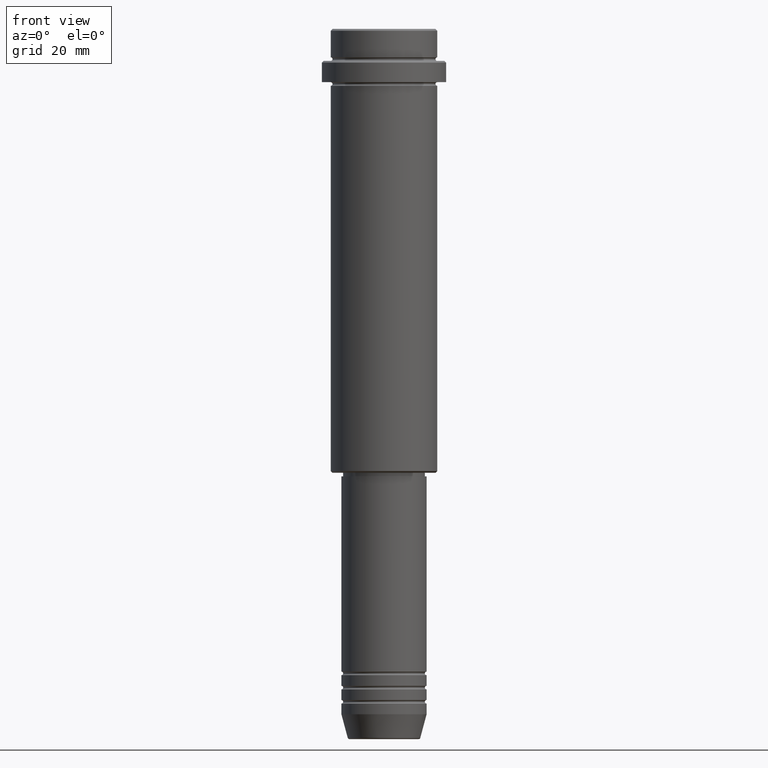
[diagram: clean part render]
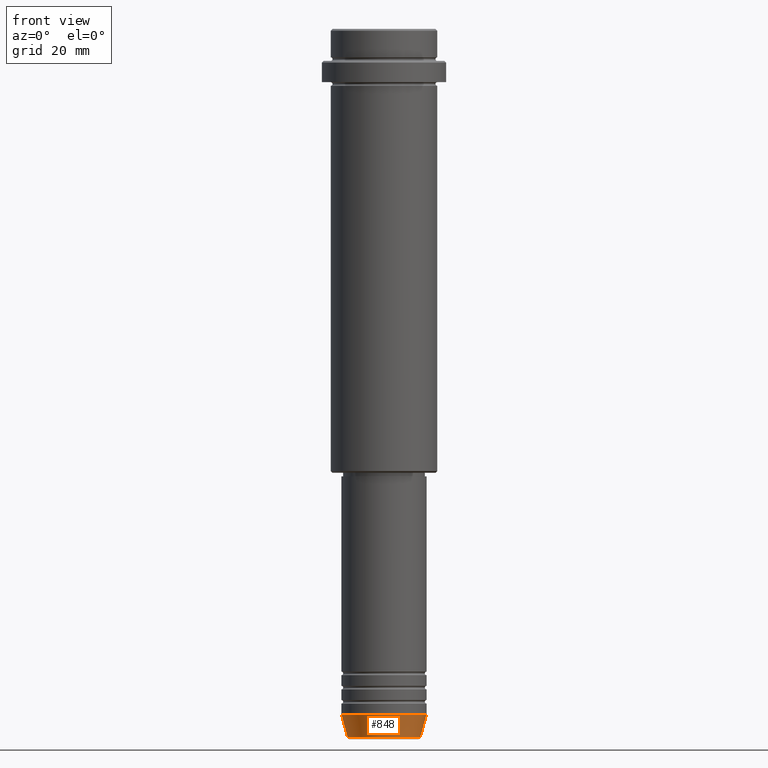
[diagram: same view with one face highlighted and labeled with its STEP entity id]
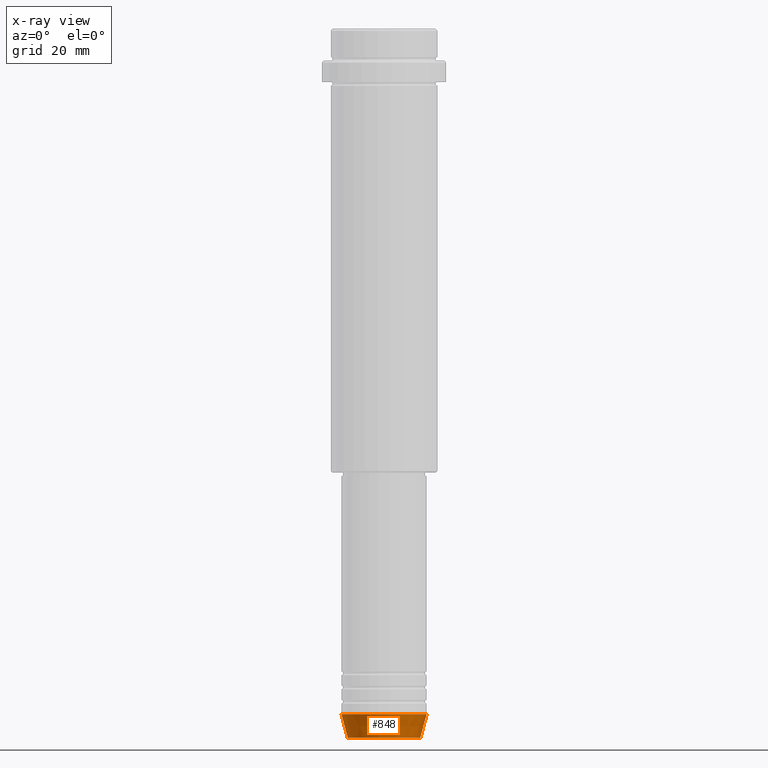
[diagram: x-ray of the same camera — body ghosted, the highlighted face saturated]
A machine part, front view. The second image highlights one B-rep face of the part: STEP entity #848.
The next image is the same camera in x-ray: the body ghosted, the highlighted face saturated — about 0% of this face is hidden behind the body in this view.
In plain terms, the highlighted conical surface has half-angle 15 deg.
Its self-contained STEP definition (entity closure, byte-faithful):
#28 = EDGE_CURVE ( 'NONE', #1283, #380, #208, .T. ) ;
#31 = DIRECTION ( 'NONE',  ( 1.000000000000000000, 0.000000000000000000, 0.000000000000000000 ) ) ;
#112 = VERTEX_POINT ( 'NONE', #857 ) ;
#123 = DIRECTION ( 'NONE',  ( 1.000000000000000000, 0.000000000000000000, 0.000000000000000000 ) ) ;
#128 = CARTESIAN_POINT ( 'NONE',  ( 12.00000000000000000, 0.000000000000000000, -193.0000000000000000 ) ) ;
#160 = VECTOR ( 'NONE', #1121, 1000.000000000000000 ) ;
#208 = CIRCLE ( 'NONE', #1291, 10.22365507213719127 ) ;
#239 = ORIENTED_EDGE ( 'NONE', *, *, #1290, .T. ) ;
#251 = EDGE_LOOP ( 'NONE', ( #1031, #272, #239, #875 ) ) ;
#258 = LINE ( 'NONE', #576, #160 ) ;
#272 = ORIENTED_EDGE ( 'NONE', *, *, #28, .T. ) ;
#273 = VERTEX_POINT ( 'NONE', #128 ) ;
#281 = CONICAL_SURFACE ( 'NONE', #455, 12.00000000000000000, 0.2617993877991500740 ) ;
#295 = CARTESIAN_POINT ( 'NONE',  ( 0.000000000000000000, 0.000000000000000000, -193.0000000000000000 ) ) ;
#311 = DIRECTION ( 'NONE',  ( -0.2588190451025213501, 3.169619151431772337E-17, 0.9659258262890680902 ) ) ;
#316 = CARTESIAN_POINT ( 'NONE',  ( -12.00000000000000000, 1.469576158976823947E-15, -193.0000000000000000 ) ) ;
#360 = DIRECTION ( 'NONE',  ( -0.000000000000000000, -0.000000000000000000, 1.000000000000000000 ) ) ;
#380 = VERTEX_POINT ( 'NONE', #588 ) ;
#432 = DIRECTION ( 'NONE',  ( -0.000000000000000000, -0.000000000000000000, 1.000000000000000000 ) ) ;
#455 = AXIS2_PLACEMENT_3D ( 'NONE', #790, #360, #31 ) ;
#576 = CARTESIAN_POINT ( 'NONE',  ( 12.00000000000000000, 0.000000000000000000, -193.0000000000000000 ) ) ;
#588 = CARTESIAN_POINT ( 'NONE',  ( 10.22365507213719127, 0.000000000000000000, -199.6294095225512706 ) ) ;
#619 = EDGE_CURVE ( 'NONE', #1283, #112, #1274, .T. ) ;
#758 = AXIS2_PLACEMENT_3D ( 'NONE', #295, #1377, #1145 ) ;
#780 = VECTOR ( 'NONE', #311, 1000.000000000000000 ) ;
#790 = CARTESIAN_POINT ( 'NONE',  ( 0.000000000000000000, 0.000000000000000000, -193.0000000000000000 ) ) ;
#817 = FACE_OUTER_BOUND ( 'NONE', #251, .T. ) ;
#848 = ADVANCED_FACE ( 'NONE', ( #817 ), #281, .T. ) ;
#857 = CARTESIAN_POINT ( 'NONE',  ( -12.00000000000000000, 1.469576158976823947E-15, -193.0000000000000000 ) ) ;
#875 = ORIENTED_EDGE ( 'NONE', *, *, #982, .F. ) ;
#905 = CARTESIAN_POINT ( 'NONE',  ( -10.22365507213719127, 1.360806402472382744E-15, -199.6294095225512706 ) ) ;
#933 = CARTESIAN_POINT ( 'NONE',  ( 0.000000000000000000, 0.000000000000000000, -199.6294095225512706 ) ) ;
#982 = EDGE_CURVE ( 'NONE', #112, #273, #1200, .T. ) ;
#1031 = ORIENTED_EDGE ( 'NONE', *, *, #619, .F. ) ;
#1121 = DIRECTION ( 'NONE',  ( 0.2588190451025213501, 0.000000000000000000, 0.9659258262890680902 ) ) ;
#1145 = DIRECTION ( 'NONE',  ( 1.000000000000000000, 0.000000000000000000, 0.000000000000000000 ) ) ;
#1200 = CIRCLE ( 'NONE', #758, 12.00000000000000000 ) ;
#1274 = LINE ( 'NONE', #316, #780 ) ;
#1283 = VERTEX_POINT ( 'NONE', #905 ) ;
#1290 = EDGE_CURVE ( 'NONE', #380, #273, #258, .T. ) ;
#1291 = AXIS2_PLACEMENT_3D ( 'NONE', #933, #432, #123 ) ;
#1377 = DIRECTION ( 'NONE',  ( -0.000000000000000000, -0.000000000000000000, 1.000000000000000000 ) ) ;